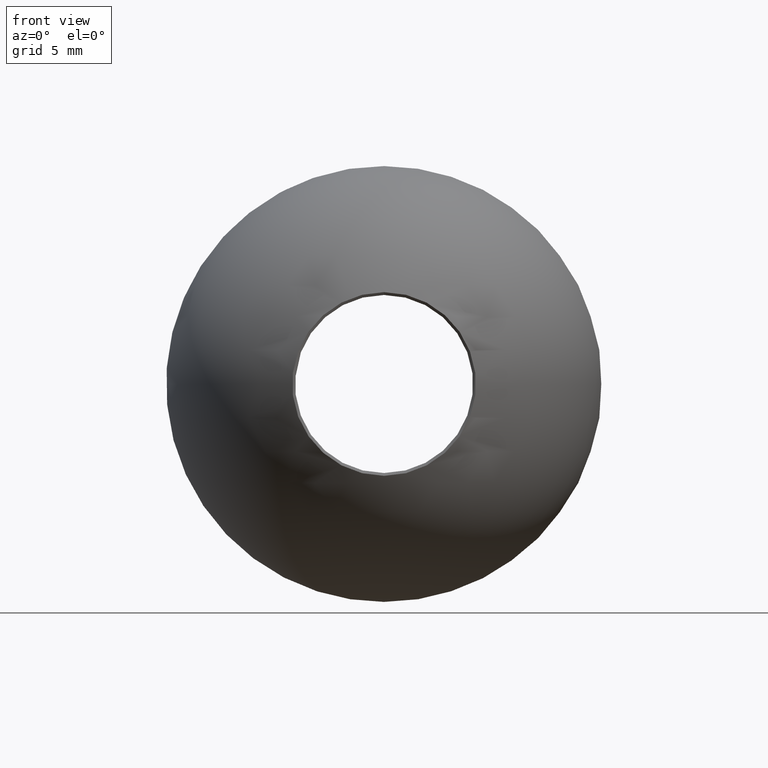
[diagram: clean part render]
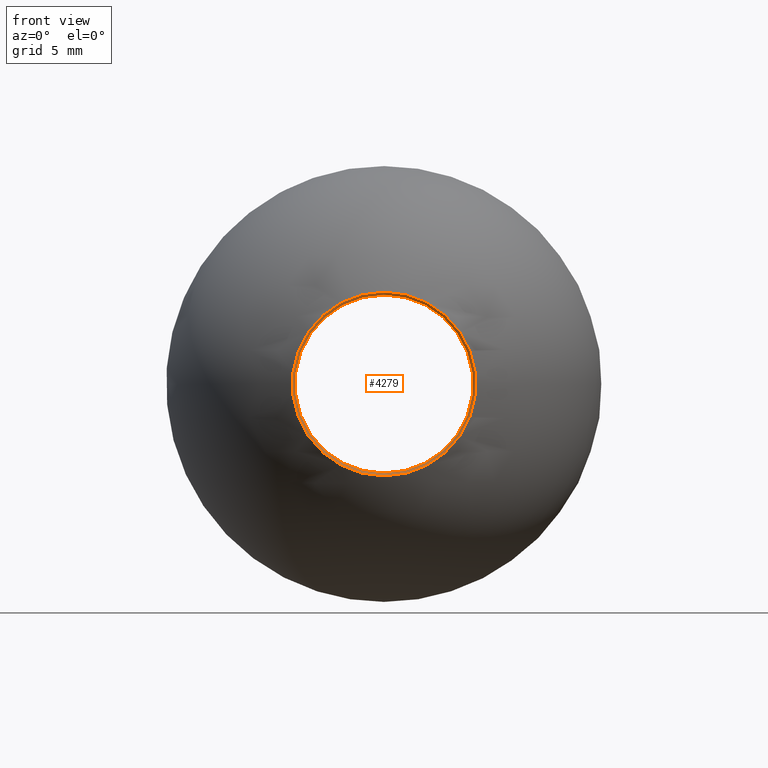
[diagram: same view with one face highlighted and labeled with its STEP entity id]
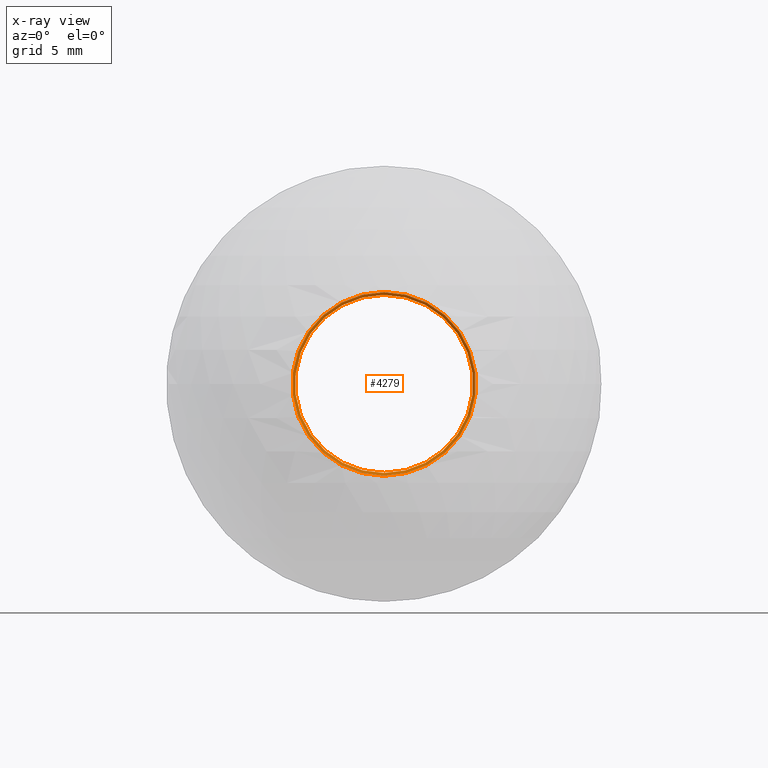
[diagram: x-ray of the same camera — body ghosted, the highlighted face saturated]
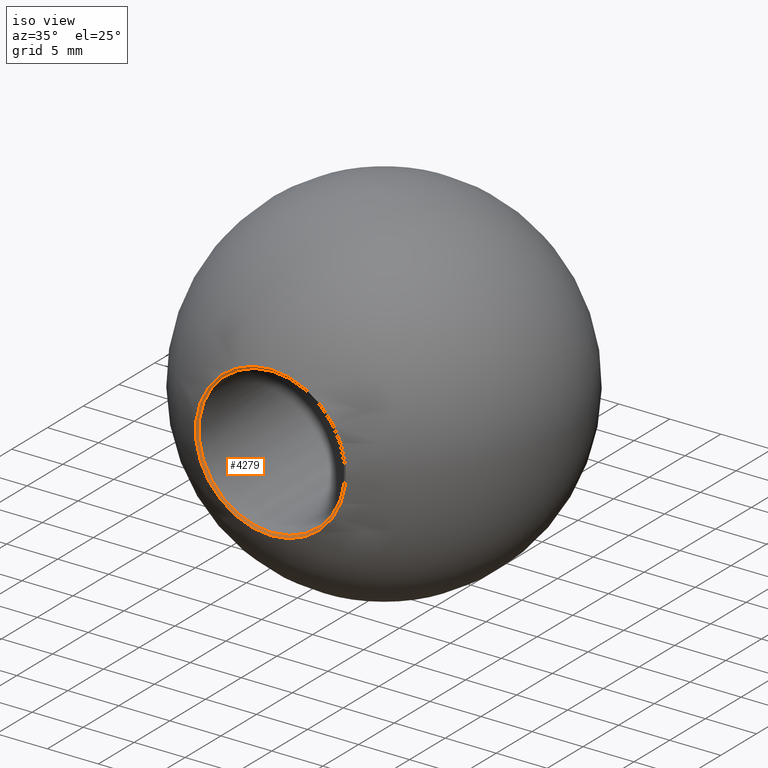
[diagram: same view with one face highlighted and labeled with its STEP entity id]
A machine part, front view. The second image highlights one B-rep face of the part: STEP entity #4279.
The next image is the same camera in x-ray: the body ghosted, the highlighted face saturated — about 0% of this face is hidden behind the body in this view.
A second angle (iso view) of the same face is appended — the face is thin or edge-on in the first view.
In plain terms, the highlighted conical surface has half-angle 57.058 deg.
Its self-contained STEP definition (entity closure, byte-faithful):
#24 = ORIENTED_EDGE ( 'NONE', *, *, #8815, .F. ) ;
#295 = CIRCLE ( 'NONE', #4247, 7.150000000000001200 ) ;
#440 = CARTESIAN_POINT ( 'NONE',  ( 1.836970198721029600E-015, -15.72271110362921000, 7.150000000000001200 ) ) ;
#856 = EDGE_CURVE ( 'NONE', #5708, #5708, #295, .T. ) ;
#1259 = CARTESIAN_POINT ( 'NONE',  ( 0.0000000000000000000, -15.86942167043450200, 7.376412125548847100 ) ) ;
#1797 = EDGE_LOOP ( 'NONE', ( #8854 ) ) ;
#2194 = AXIS2_PLACEMENT_3D ( 'NONE', #7446, #8905, #6807 ) ;
#2820 = DIRECTION ( 'NONE',  ( 0.0000000000000000000, 1.000000000000000000, 0.0000000000000000000 ) ) ;
#3350 = DIRECTION ( 'NONE',  ( 0.0000000000000000000, 0.0000000000000000000, 1.000000000000000000 ) ) ;
#3558 = FACE_OUTER_BOUND ( 'NONE', #7995, .T. ) ;
#3592 = DIRECTION ( 'NONE',  ( 0.0000000000000000000, 0.0000000000000000000, 1.000000000000000000 ) ) ;
#4247 = AXIS2_PLACEMENT_3D ( 'NONE', #7545, #8336, #3350 ) ;
#4279 = ADVANCED_FACE ( 'NONE', ( #6725, #3558 ), #8263, .F. ) ;
#5708 = VERTEX_POINT ( 'NONE', #440 ) ;
#6725 = FACE_BOUND ( 'NONE', #1797, .T. ) ;
#6807 = DIRECTION ( 'NONE',  ( 0.0000000000000000000, 0.0000000000000000000, -1.000000000000000000 ) ) ;
#6923 = CIRCLE ( 'NONE', #8257, 7.376412125548847100 ) ;
#7446 = CARTESIAN_POINT ( 'NONE',  ( 1.836970198721029600E-015, -15.86942167043449800, 0.0000000000000000000 ) ) ;
#7545 = CARTESIAN_POINT ( 'NONE',  ( 1.836970198721029600E-015, -15.72271110362921000, 0.0000000000000000000 ) ) ;
#7809 = CARTESIAN_POINT ( 'NONE',  ( 0.0000000000000000000, -15.86942167043450200, 0.0000000000000000000 ) ) ;
#7995 = EDGE_LOOP ( 'NONE', ( #24 ) ) ;
#8090 = VERTEX_POINT ( 'NONE', #1259 ) ;
#8257 = AXIS2_PLACEMENT_3D ( 'NONE', #7809, #2820, #3592 ) ;
#8263 = CONICAL_SURFACE ( 'NONE', #2194, 7.376412125548846200, 0.9958423350852347900 ) ;
#8336 = DIRECTION ( 'NONE',  ( -0.0000000000000000000, -1.000000000000000000, -0.0000000000000000000 ) ) ;
#8815 = EDGE_CURVE ( 'NONE', #8090, #8090, #6923, .T. ) ;
#8854 = ORIENTED_EDGE ( 'NONE', *, *, #856, .F. ) ;
#8905 = DIRECTION ( 'NONE',  ( -0.0000000000000000000, -1.000000000000000000, -0.0000000000000000000 ) ) ;